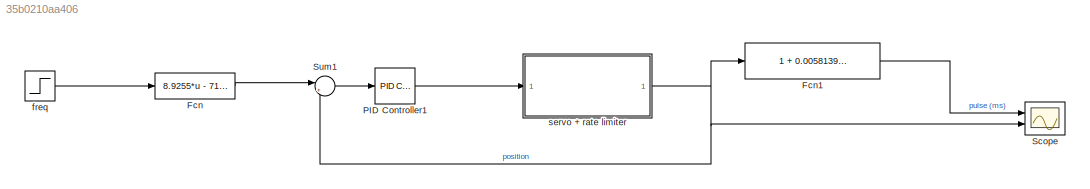
MODEL slx_35b0210aa406
KIND model
CONFIG AbsTol = auto
CONFIG EnableMultiTasking = off
CONFIG FixedStep = auto
CONFIG MaxStep = auto
CONFIG MinStep = auto
CONFIG RelTol = 1e-3
CONFIG SampleTimeConstraint = Unconstrained
CONFIG Solver = VariableStepAuto
CONFIG SolverName = VariableStepAuto
CONFIG StartTime = 0.0
CONFIG StopTime = 10
BLOCK [Fcn] Fcn
  Expr = 8.9255*u - 714.05
BLOCK [Fcn] Fcn1
  Expr = 1 + 0.00581395348*u
BLOCK [Reference] PID Controller1  REF=simulink/Continuous/PID Controller
  Ports = [1, 1]
  SourceBlock = simulink/Continuous/PID Controller
  SourceProductBaseCode = SL
  SourceProductName = Simulink
  SourceType = PID 1dof
BLOCK [Scope] Scope
  Floating = off
  NumInputPorts = 2
  Ports = [2]
  ScopeSpecificationString = Simulink.scopes.TimeScopeBlockCfg('CurrentConfiguration', extmgr.ConfigurationSet(extmgr.Configuration('Core','General UI',true),extmgr.Configuration('Core','Source UI',true),extmgr.Configuration('Sources','WiredSimulink',true),extmgr.Configuration('Visuals','Time Domain',true,'SerializedDisplays',{struct('MinYLimReal','-20.64001','MaxYLimReal','185.76005','YLabelReal','','MinYLimMag','0.00000','M...<+1370ch>
BLOCK [Sum] Sum1
  IconShape = round
  InputSameDT = off
  Inputs = |+-
  OutDataTypeStr = Inherit: Inherit via internal rule
  Ports = [2, 1]
  SaturateOnIntegerOverflow = off
BLOCK [Step] freq 
  After = 120
  Before = 80
  SampleTime = 0
  Time = 3
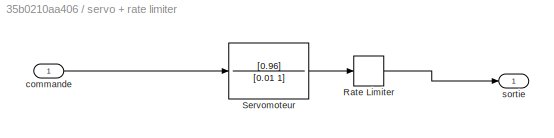
BLOCK [SubSystem] servo + rate limiter 
  Ports = [1, 1]
  RequestExecContextInheritance = off
BLOCK [RateLimiter] servo + rate limiter /Rate Limiter
  FallingSlewLimit = -238.6
  RisingSlewLimit = 238.6
  SampleTimeMode = inherited
BLOCK [TransferFcn] servo + rate limiter /Servomoteur 
  Denominator = [0.01 1]
  Numerator = [0.96]
BLOCK [Inport] servo + rate limiter /commande 
  IconDisplay = Port number
BLOCK [Outport] servo + rate limiter /sortie 
  IconDisplay = Port number
LINE Fcn1:1 -> Scope:1
LINE Fcn:1 -> Sum1:1
LINE PID Controller1:1 -> servo + rate limiter :1
LINE Sum1:1 -> PID Controller1:1
LINE freq :1 -> Fcn:1
LINE servo + rate limiter /Rate Limiter:1 -> servo + rate limiter /sortie :1
LINE servo + rate limiter /Servomoteur :1 -> servo + rate limiter /Rate Limiter:1
LINE servo + rate limiter /commande :1 -> servo + rate limiter /Servomoteur :1
NET servo + rate limiter :1 -> Fcn1:1, Scope:2, Sum1:2
note: NET lines group one-source signal fan-out (src -> all destinations, sorted); 1:1 wires keep LINE
